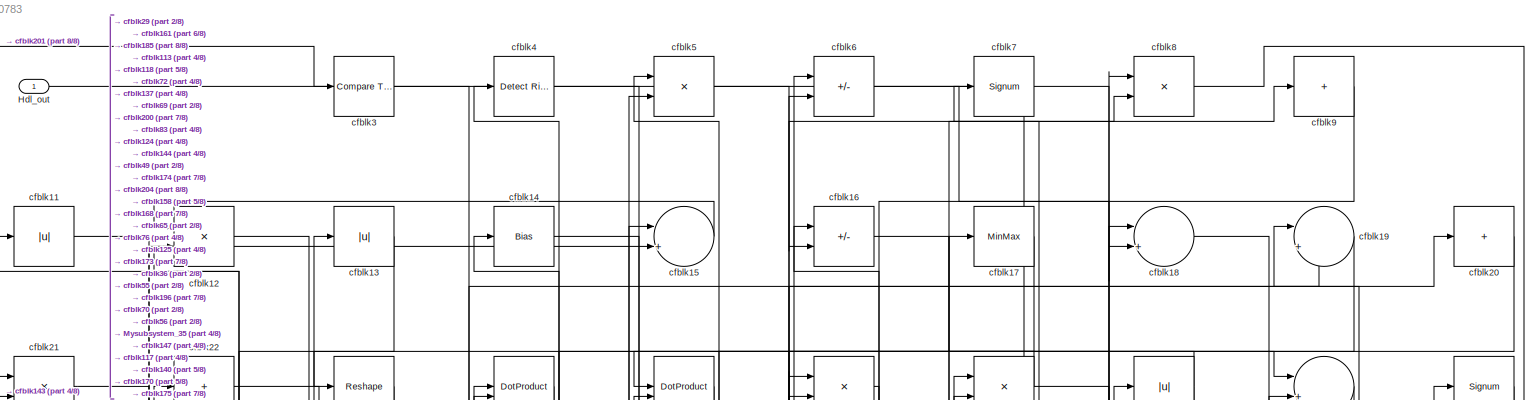
[diagram: root canvas - part 1/8, full width, top band]
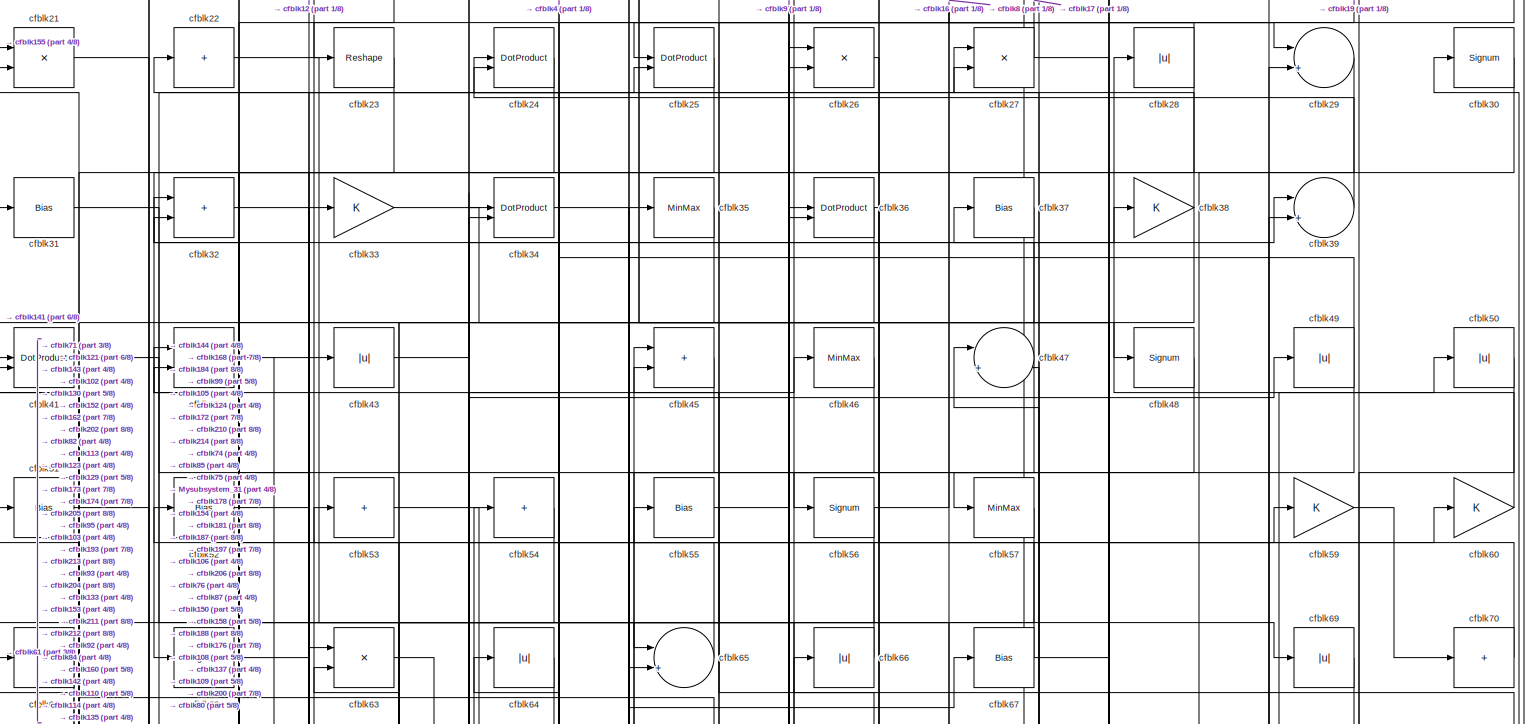
[diagram: root canvas - part 2/8, full width, top band]
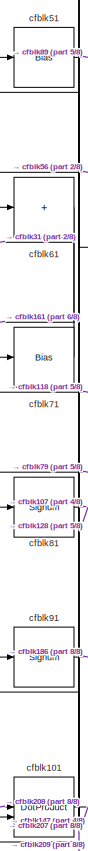
[diagram: root canvas - part 3/8, middle left region]
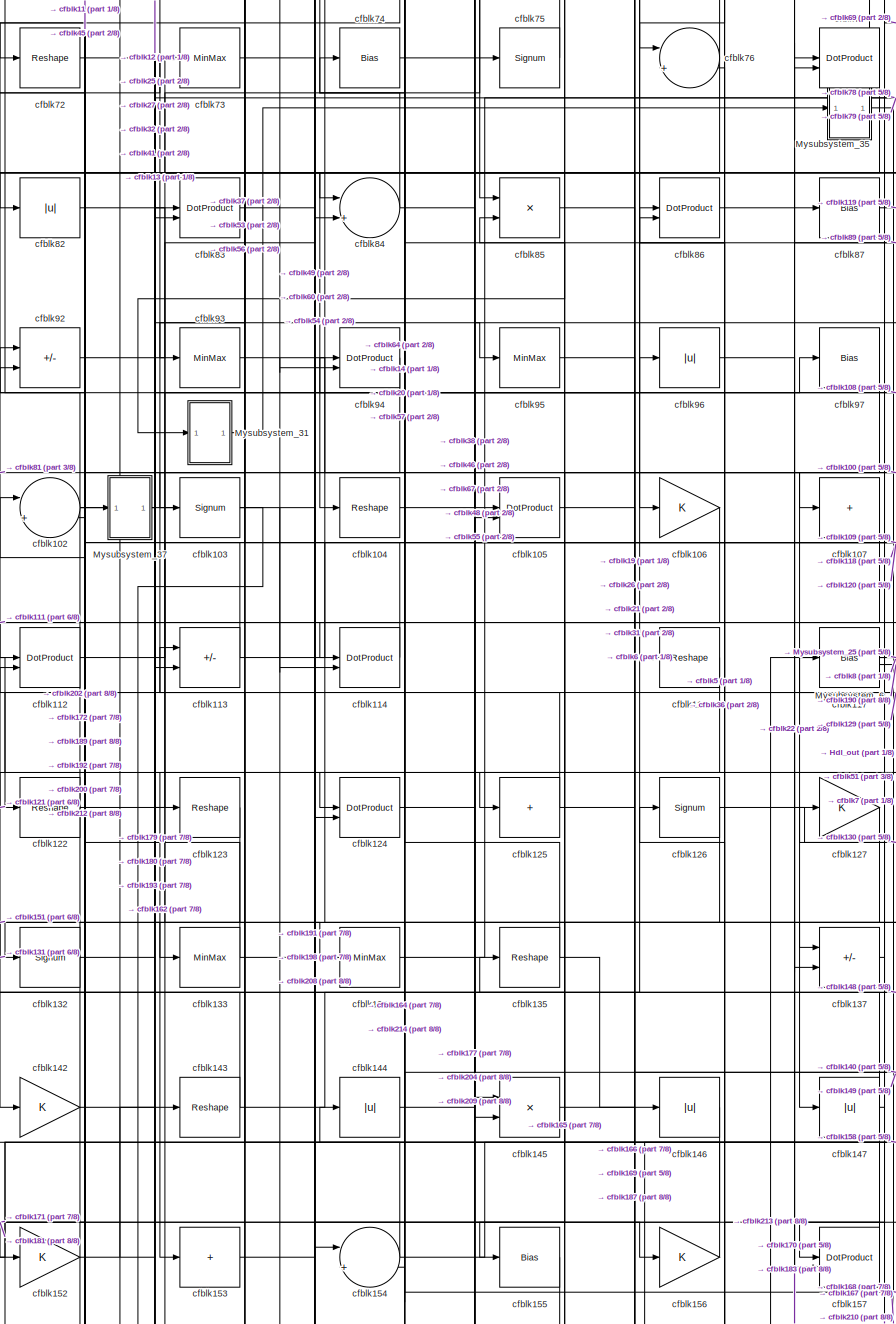
[diagram: root canvas - part 4/8, central region]
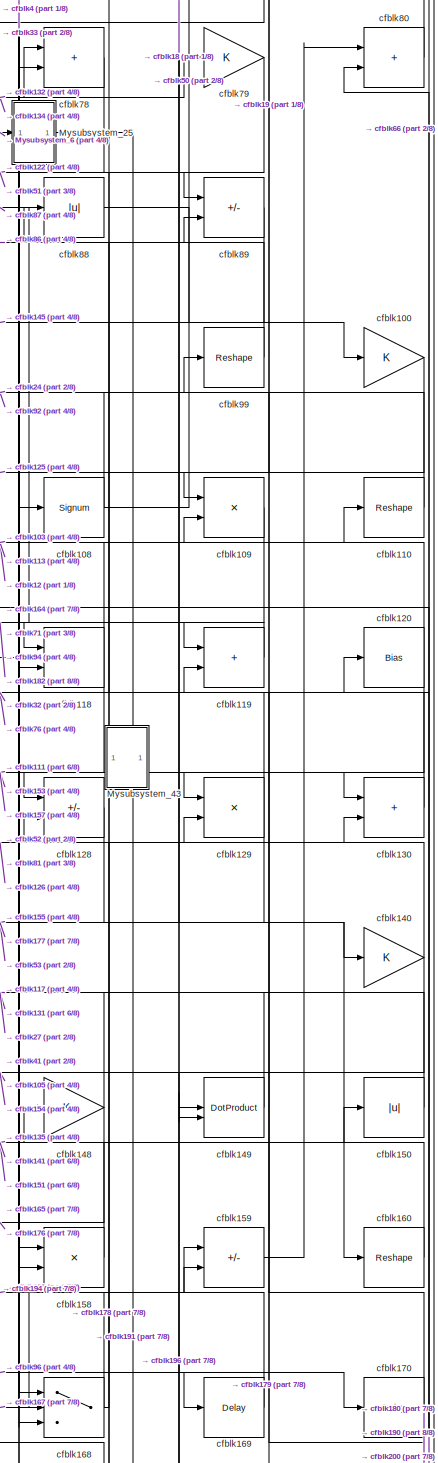
[diagram: root canvas - part 5/8, middle right region]
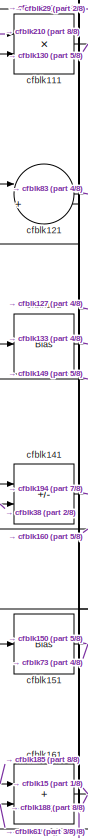
[diagram: root canvas - part 6/8, middle left region]
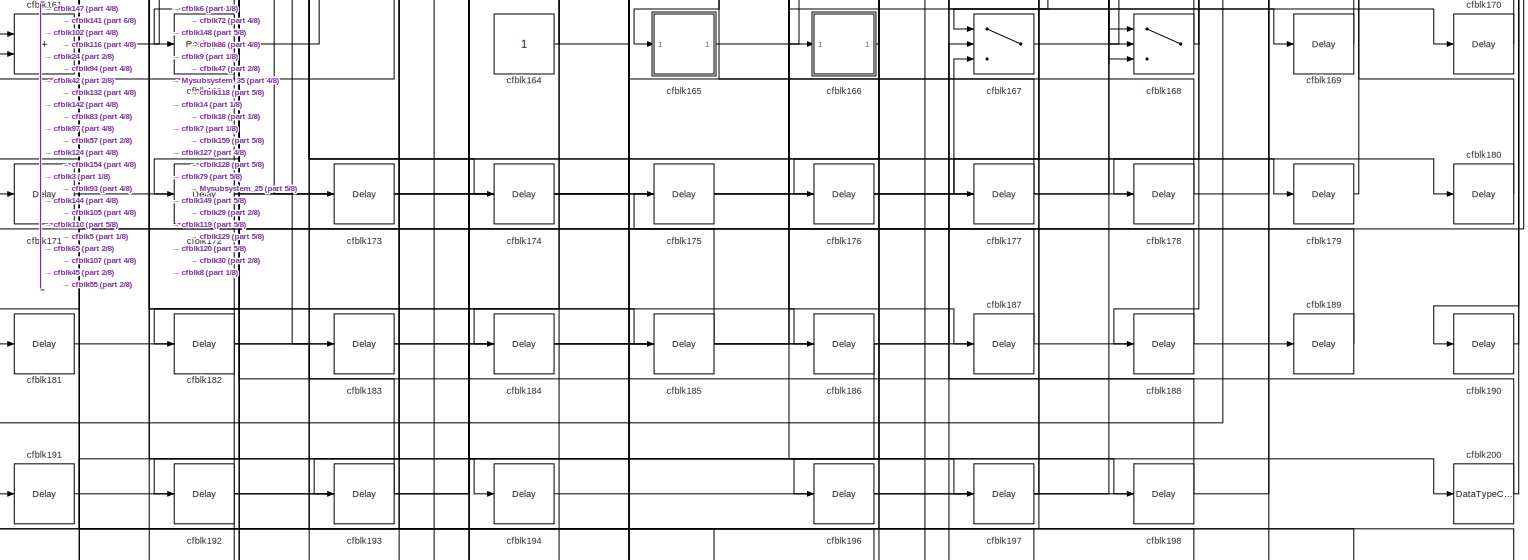
[diagram: root canvas - part 7/8, full width, bottom band]
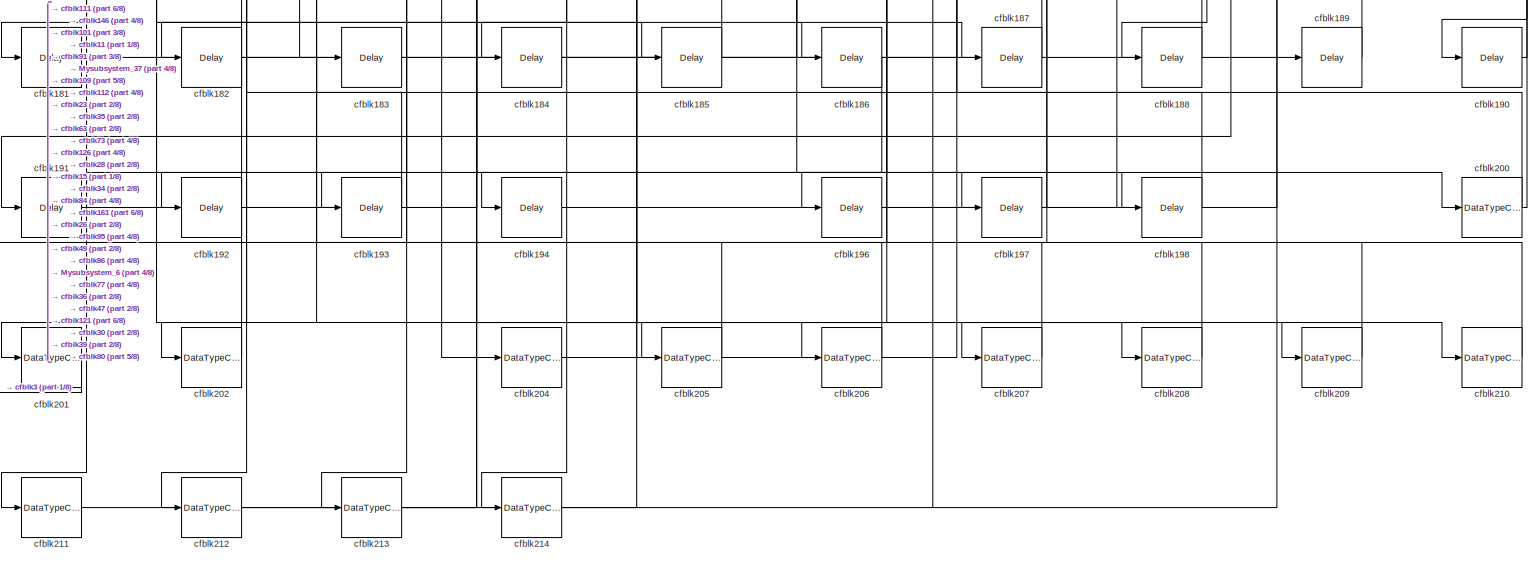
[diagram: root canvas - part 8/8, full width, bottom band]
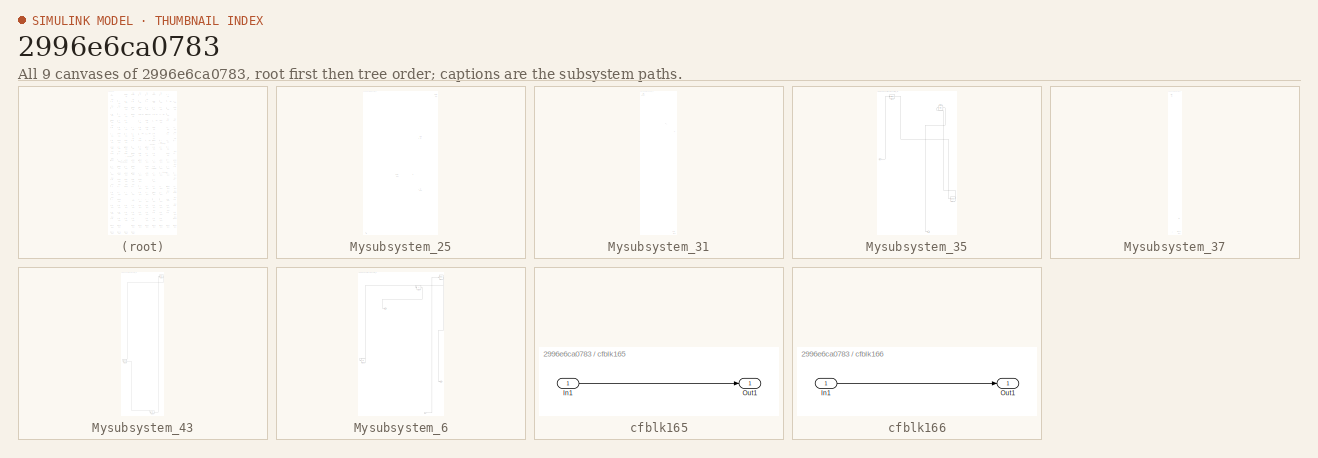
[diagram: thumbnail index - all 9 canvases of the model, root first then tree order]
MODEL slx_2996e6ca0783
KIND model
CONFIG AbsTol = auto
CONFIG EnableMultiTasking = off
CONFIG FixedStep = auto
CONFIG MaxStep = auto
CONFIG MinStep = auto
CONFIG RelTol = 1e-3
CONFIG SampleTimeConstraint = Unconstrained
CONFIG SolverName = VariableStepAuto
CONFIG StartTime = 0.0
CONFIG StopTime = 10.0
BLOCK [Outport] Hdl_out
  OutDataTypeStr = uint8
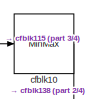
[diagram: Mysubsystem_25 - part 1/4, top right region]
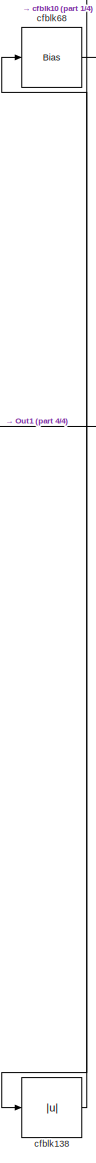
[diagram: Mysubsystem_25 - part 2/4, middle right region]
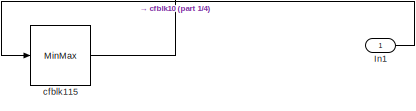
[diagram: Mysubsystem_25 - part 3/4, central region]
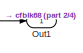
[diagram: Mysubsystem_25 - part 4/4, bottom left region]
BLOCK [SubSystem] Mysubsystem_25
  RTWFcnName = Mysubsystem_25
  RTWFcnNameOpts = User specified
  RTWFileNameOpts = Use function name
  RTWSystemCode = Reusable function
  TreatAsAtomicUnit = on
BLOCK [Inport] Mysubsystem_25/In1
BLOCK [Outport] Mysubsystem_25/Out1
BLOCK [MinMax] Mysubsystem_25/cfblk10
BLOCK [MinMax] Mysubsystem_25/cfblk115
BLOCK [Abs] Mysubsystem_25/cfblk138
  SaturateOnIntegerOverflow = off
BLOCK [Bias] Mysubsystem_25/cfblk68
  Bias = 0.0
  SaturateOnIntegerOverflow = off
BLOCK [SubSystem] Mysubsystem_31
  RTWFcnName = Mysubsystem_31
  RTWFcnNameOpts = User specified
  RTWFileNameOpts = Use function name
  RTWSystemCode = Reusable function
  TreatAsAtomicUnit = on
BLOCK [Inport] Mysubsystem_31/In1
BLOCK [Outport] Mysubsystem_31/Y
BLOCK [Reference] Mysubsystem_31/cfblk1  REF=simulink/Logic and Bit
Operations/Detect
Increase
  LibrarySourceBlock = hdlsllib/Logic and Bit\nOperations/Detect\nIncrease
  SourceBlock = simulink/Logic and Bit\nOperations/Detect\nIncrease
  SourceType = Detect Increase
BLOCK [Delay] Mysubsystem_31/cfblk195
  InputPortMap = u0
  SampleTime = 1
BLOCK [SubSystem] Mysubsystem_35
  RTWFcnName = Mysubsystem_35
  RTWFcnNameOpts = User specified
  RTWFileNameOpts = Use function name
  RTWSystemCode = Reusable function
  TreatAsAtomicUnit = on
BLOCK [Inport] Mysubsystem_35/In1
BLOCK [Outport] Mysubsystem_35/Out1
BLOCK [Signum] Mysubsystem_35/cfblk139
BLOCK [MinMax] Mysubsystem_35/cfblk44
BLOCK [Bias] Mysubsystem_35/cfblk58
  Bias = 0.0
  SaturateOnIntegerOverflow = off
BLOCK [SubSystem] Mysubsystem_37
  RTWFcnName = Mysubsystem_37
  RTWFcnNameOpts = User specified
  RTWFileNameOpts = Use function name
  RTWSystemCode = Reusable function
  TreatAsAtomicUnit = on
BLOCK [Outport] Mysubsystem_37/Out1
BLOCK [Reference] Mysubsystem_37/cfblk2  REF=simulink/Logic and Bit
Operations/Bit Set
  LibrarySourceBlock = hdlsllib/Logic and Bit\nOperations/Bit Set
  SourceBlock = simulink/Logic and Bit\nOperations/Bit Set
  SourceType = Bit Set
BLOCK [DataTypeConversion] Mysubsystem_37/cfblk203
  OutDataTypeStr = uint8
  RndMeth = Floor
  SaturateOnIntegerOverflow = off
BLOCK [Inport] Mysubsystem_37/u
BLOCK [SubSystem] Mysubsystem_43
  RTWFcnName = Mysubsystem_43
  RTWFcnNameOpts = User specified
  RTWFileNameOpts = Use function name
  RTWSystemCode = Reusable function
  TreatAsAtomicUnit = on
BLOCK [Reshape] Mysubsystem_43/cfblk136
BLOCK [Delay] Mysubsystem_43/cfblk199
  InputPortMap = u0
  SampleTime = 1
BLOCK [MinMax] Mysubsystem_43/cfblk40
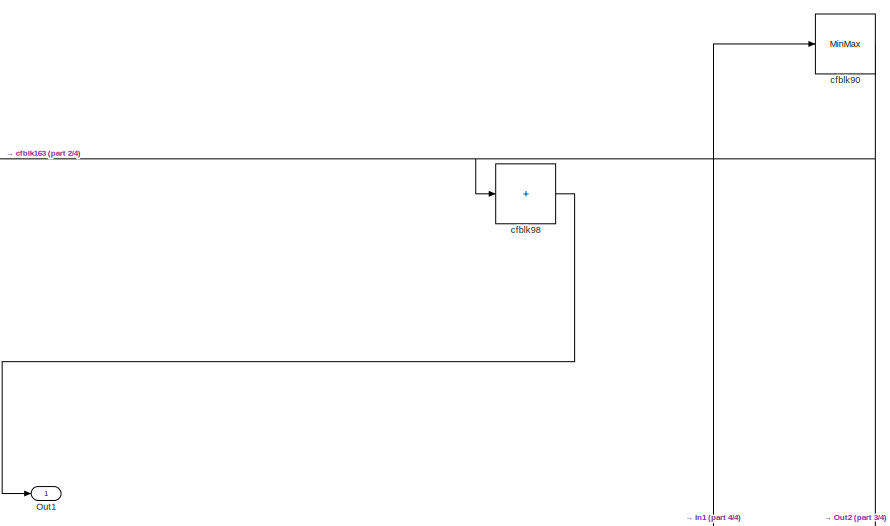
[diagram: Mysubsystem_6 - part 1/4, top center region]
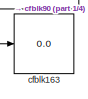
[diagram: Mysubsystem_6 - part 2/4, middle left region]
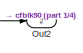
[diagram: Mysubsystem_6 - part 3/4, bottom right region]
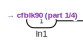
[diagram: Mysubsystem_6 - part 4/4, bottom right region]
BLOCK [SubSystem] Mysubsystem_6
  RTWFcnName = Mysubsystem_6
  RTWFcnNameOpts = User specified
  RTWFileNameOpts = Use function name
  RTWSystemCode = Reusable function
  TreatAsAtomicUnit = on
BLOCK [Inport] Mysubsystem_6/In1
BLOCK [Outport] Mysubsystem_6/Out1
BLOCK [Outport] Mysubsystem_6/Out2
  Port = 2
BLOCK [Display] Mysubsystem_6/cfblk163
  Decimation = 1
BLOCK [MinMax] Mysubsystem_6/cfblk90
BLOCK [Sum] Mysubsystem_6/cfblk98
  IconShape = rectangular
  Inputs = +
BLOCK [Gain] cfblk100
  OutDataTypeStr = uint8
BLOCK [DotProduct] cfblk101
  OutDataTypeStr = uint8
BLOCK [Sum] cfblk102
  Inputs = |++
  OutDataTypeStr = uint8
BLOCK [Signum] cfblk103
BLOCK [Reshape] cfblk104
BLOCK [DotProduct] cfblk105
  OutDataTypeStr = uint8
BLOCK [Gain] cfblk106
  OutDataTypeStr = uint8
BLOCK [Sum] cfblk107
  IconShape = rectangular
  Inputs = +
  OutDataTypeStr = uint8
BLOCK [Signum] cfblk108
BLOCK [Product] cfblk109
  Inputs = */
  OutDataTypeStr = uint8
  RndMeth = Zero
  SaturateOnIntegerOverflow = on
BLOCK [Abs] cfblk11
  OutDataTypeStr = uint8
  SaturateOnIntegerOverflow = off
BLOCK [Reshape] cfblk110
BLOCK [Product] cfblk111
  Inputs = */
  OutDataTypeStr = uint8
  RndMeth = Zero
  SaturateOnIntegerOverflow = on
BLOCK [DotProduct] cfblk112
  OutDataTypeStr = uint8
BLOCK [Sum] cfblk113
  IconShape = rectangular
  Inputs = +-
  OutDataTypeStr = uint8
BLOCK [DotProduct] cfblk114
  OutDataTypeStr = uint8
BLOCK [Reshape] cfblk116
BLOCK [Bias] cfblk117
  Bias = 0.0
  SaturateOnIntegerOverflow = off
BLOCK [Sum] cfblk118
  IconShape = rectangular
  OutDataTypeStr = uint8
BLOCK [Sum] cfblk119
  IconShape = rectangular
  OutDataTypeStr = uint8
BLOCK [Product] cfblk12
  Inputs = */
  OutDataTypeStr = uint8
  RndMeth = Zero
  SaturateOnIntegerOverflow = on
BLOCK [Bias] cfblk120
  Bias = 0.0
  SaturateOnIntegerOverflow = off
BLOCK [Sum] cfblk121
  Inputs = |++
  OutDataTypeStr = uint8
BLOCK [Reshape] cfblk122
BLOCK [Reshape] cfblk123
BLOCK [DotProduct] cfblk124
  OutDataTypeStr = uint8
BLOCK [Sum] cfblk125
  IconShape = rectangular
  Inputs = +
  OutDataTypeStr = uint8
BLOCK [Signum] cfblk126
BLOCK [Gain] cfblk127
  OutDataTypeStr = uint8
BLOCK [Sum] cfblk128
  IconShape = rectangular
  Inputs = +-
  OutDataTypeStr = uint8
BLOCK [Product] cfblk129
  Inputs = */
  OutDataTypeStr = uint8
  RndMeth = Zero
  SaturateOnIntegerOverflow = on
BLOCK [Abs] cfblk13
  OutDataTypeStr = uint8
  SaturateOnIntegerOverflow = off
BLOCK [Sum] cfblk130
  IconShape = rectangular
  OutDataTypeStr = uint8
BLOCK [Bias] cfblk131
  Bias = 0.0
  SaturateOnIntegerOverflow = off
BLOCK [Signum] cfblk132
BLOCK [MinMax] cfblk133
  OutDataTypeStr = uint8
BLOCK [MinMax] cfblk134
  OutDataTypeStr = uint8
BLOCK [Reshape] cfblk135
BLOCK [Sum] cfblk137
  IconShape = rectangular
  Inputs = +-
  OutDataTypeStr = uint8
BLOCK [Bias] cfblk14
  Bias = 0.0
  SaturateOnIntegerOverflow = off
BLOCK [Gain] cfblk140
  OutDataTypeStr = uint8
BLOCK [Sum] cfblk141
  IconShape = rectangular
  Inputs = +-
  OutDataTypeStr = uint8
BLOCK [Gain] cfblk142
  OutDataTypeStr = uint8
BLOCK [Reshape] cfblk143
BLOCK [Abs] cfblk144
  OutDataTypeStr = uint8
  SaturateOnIntegerOverflow = off
BLOCK [Product] cfblk145
  Inputs = */
  OutDataTypeStr = uint8
  RndMeth = Zero
  SaturateOnIntegerOverflow = on
BLOCK [Abs] cfblk146
  OutDataTypeStr = uint8
  SaturateOnIntegerOverflow = off
BLOCK [Abs] cfblk147
  OutDataTypeStr = uint8
  SaturateOnIntegerOverflow = off
BLOCK [Gain] cfblk148
  OutDataTypeStr = uint8
BLOCK [DotProduct] cfblk149
  OutDataTypeStr = uint8
BLOCK [Sum] cfblk15
  Inputs = |++
  OutDataTypeStr = uint8
BLOCK [Abs] cfblk150
  OutDataTypeStr = uint8
  SaturateOnIntegerOverflow = off
BLOCK [Bias] cfblk151
  Bias = 0.0
  SaturateOnIntegerOverflow = off
BLOCK [Gain] cfblk152
  OutDataTypeStr = uint8
BLOCK [Sum] cfblk153
  IconShape = rectangular
  Inputs = +
  OutDataTypeStr = uint8
BLOCK [Sum] cfblk154
  Inputs = |++
  OutDataTypeStr = uint8
BLOCK [Bias] cfblk155
  Bias = 0.0
  SaturateOnIntegerOverflow = off
BLOCK [Gain] cfblk156
  OutDataTypeStr = uint8
BLOCK [DotProduct] cfblk157
  OutDataTypeStr = uint8
BLOCK [Product] cfblk158
  Inputs = */
  OutDataTypeStr = uint8
  RndMeth = Zero
  SaturateOnIntegerOverflow = on
BLOCK [Sum] cfblk159
  IconShape = rectangular
  Inputs = +-
  OutDataTypeStr = uint8
BLOCK [Sum] cfblk16
  IconShape = rectangular
  Inputs = +-
  OutDataTypeStr = uint8
BLOCK [Reshape] cfblk160
BLOCK [Sum] cfblk161
  IconShape = rectangular
  OutDataTypeStr = uint8
BLOCK [Reshape] cfblk162
BLOCK [Constant] cfblk164
  OutDataTypeStr = uint8
  SampleTime = -1
BLOCK [SubSystem] cfblk165
  LibrarySourceBlock = hdlsllib/Ports &\nSubsystems/Subsystem
BLOCK [Inport] cfblk165/In1
BLOCK [Outport] cfblk165/Out1
BLOCK [SubSystem] cfblk166
  LibrarySourceBlock = hdlsllib/Ports &\nSubsystems/Subsystem
BLOCK [Inport] cfblk166/In1
BLOCK [Outport] cfblk166/Out1
BLOCK [Switch] cfblk167
  InputSameDT = off
  OutDataTypeStr = uint8
  SaturateOnIntegerOverflow = off
BLOCK [Switch] cfblk168
  InputSameDT = off
  OutDataTypeStr = uint8
  SaturateOnIntegerOverflow = off
BLOCK [Delay] cfblk169
  InputPortMap = u0
  SampleTime = 1
BLOCK [MinMax] cfblk17
  OutDataTypeStr = uint8
BLOCK [Delay] cfblk170
  InputPortMap = u0
  SampleTime = 1
BLOCK [Delay] cfblk171
  InputPortMap = u0
  SampleTime = 1
BLOCK [Delay] cfblk172
  InputPortMap = u0
  SampleTime = 1
BLOCK [Delay] cfblk173
  InputPortMap = u0
  SampleTime = 1
BLOCK [Delay] cfblk174
  InputPortMap = u0
  SampleTime = 1
BLOCK [Delay] cfblk175
  InputPortMap = u0
  SampleTime = 1
BLOCK [Delay] cfblk176
  InputPortMap = u0
  SampleTime = 1
BLOCK [Delay] cfblk177
  InputPortMap = u0
  SampleTime = 1
BLOCK [Delay] cfblk178
  InputPortMap = u0
  SampleTime = 1
BLOCK [Delay] cfblk179
  InputPortMap = u0
  SampleTime = 1
BLOCK [Sum] cfblk18
  Inputs = |++
  OutDataTypeStr = uint8
BLOCK [Delay] cfblk180
  InputPortMap = u0
  SampleTime = 1
BLOCK [Delay] cfblk181
  InputPortMap = u0
  SampleTime = 1
BLOCK [Delay] cfblk182
  InputPortMap = u0
  SampleTime = 1
BLOCK [Delay] cfblk183
  InputPortMap = u0
  SampleTime = 1
BLOCK [Delay] cfblk184
  InputPortMap = u0
  SampleTime = 1
BLOCK [Delay] cfblk185
  InputPortMap = u0
  SampleTime = 1
BLOCK [Delay] cfblk186
  InputPortMap = u0
  SampleTime = 1
BLOCK [Delay] cfblk187
  InputPortMap = u0
  SampleTime = 1
BLOCK [Delay] cfblk188
  InputPortMap = u0
  SampleTime = 1
BLOCK [Delay] cfblk189
  InputPortMap = u0
  SampleTime = 1
BLOCK [Sum] cfblk19
  Inputs = |++
  OutDataTypeStr = uint8
BLOCK [Delay] cfblk190
  InputPortMap = u0
  SampleTime = 1
BLOCK [Delay] cfblk191
  InputPortMap = u0
  SampleTime = 1
BLOCK [Delay] cfblk192
  InputPortMap = u0
  SampleTime = 1
BLOCK [Delay] cfblk193
  InputPortMap = u0
  SampleTime = 1
BLOCK [Delay] cfblk194
  InputPortMap = u0
  SampleTime = 1
BLOCK [Delay] cfblk196
  InputPortMap = u0
  SampleTime = 1
BLOCK [Delay] cfblk197
  InputPortMap = u0
  SampleTime = 1
BLOCK [Delay] cfblk198
  InputPortMap = u0
  SampleTime = 1
BLOCK [Sum] cfblk20
  IconShape = rectangular
  Inputs = +
  OutDataTypeStr = uint8
BLOCK [DataTypeConversion] cfblk200
  OutDataTypeStr = uint8
  RndMeth = Floor
  SaturateOnIntegerOverflow = off
BLOCK [DataTypeConversion] cfblk201
  OutDataTypeStr = uint8
  RndMeth = Floor
  SaturateOnIntegerOverflow = off
BLOCK [DataTypeConversion] cfblk202
  OutDataTypeStr = uint8
  RndMeth = Floor
  SaturateOnIntegerOverflow = off
BLOCK [DataTypeConversion] cfblk204
  OutDataTypeStr = uint8
  RndMeth = Floor
  SaturateOnIntegerOverflow = off
BLOCK [DataTypeConversion] cfblk205
  OutDataTypeStr = uint8
  RndMeth = Floor
  SaturateOnIntegerOverflow = off
BLOCK [DataTypeConversion] cfblk206
  OutDataTypeStr = uint8
  RndMeth = Floor
  SaturateOnIntegerOverflow = off
BLOCK [DataTypeConversion] cfblk207
  OutDataTypeStr = uint8
  RndMeth = Floor
  SaturateOnIntegerOverflow = off
BLOCK [DataTypeConversion] cfblk208
  OutDataTypeStr = uint8
  RndMeth = Floor
  SaturateOnIntegerOverflow = off
BLOCK [DataTypeConversion] cfblk209
  OutDataTypeStr = uint8
  RndMeth = Floor
  SaturateOnIntegerOverflow = off
BLOCK [Product] cfblk21
  Inputs = */
  OutDataTypeStr = uint8
  RndMeth = Zero
  SaturateOnIntegerOverflow = on
BLOCK [DataTypeConversion] cfblk210
  OutDataTypeStr = uint8
  RndMeth = Floor
  SaturateOnIntegerOverflow = off
BLOCK [DataTypeConversion] cfblk211
  OutDataTypeStr = uint8
  RndMeth = Floor
  SaturateOnIntegerOverflow = off
BLOCK [DataTypeConversion] cfblk212
  OutDataTypeStr = uint8
  RndMeth = Floor
  SaturateOnIntegerOverflow = off
BLOCK [DataTypeConversion] cfblk213
  OutDataTypeStr = uint8
  RndMeth = Floor
  SaturateOnIntegerOverflow = off
BLOCK [DataTypeConversion] cfblk214
  OutDataTypeStr = uint8
  RndMeth = Floor
  SaturateOnIntegerOverflow = off
BLOCK [Sum] cfblk22
  IconShape = rectangular
  Inputs = +
  OutDataTypeStr = uint8
BLOCK [Reshape] cfblk23
BLOCK [DotProduct] cfblk24
  OutDataTypeStr = uint8
BLOCK [DotProduct] cfblk25
  OutDataTypeStr = uint8
BLOCK [Product] cfblk26
  Inputs = */
  OutDataTypeStr = uint8
  RndMeth = Zero
  SaturateOnIntegerOverflow = on
BLOCK [Product] cfblk27
  Inputs = */
  OutDataTypeStr = uint8
  RndMeth = Zero
  SaturateOnIntegerOverflow = on
BLOCK [Abs] cfblk28
  OutDataTypeStr = uint8
  SaturateOnIntegerOverflow = off
BLOCK [Sum] cfblk29
  Inputs = |++
  OutDataTypeStr = uint8
BLOCK [Reference] cfblk3  REF=hdlsllib/Logic and Bit
Operations/Compare
To Zero
  SourceBlock = hdlsllib/Logic and Bit\nOperations/Compare\nTo Zero
  SourceType = Compare To Zero
BLOCK [Signum] cfblk30
BLOCK [Bias] cfblk31
  Bias = 0.0
  SaturateOnIntegerOverflow = off
BLOCK [Sum] cfblk32
  IconShape = rectangular
  OutDataTypeStr = uint8
BLOCK [Gain] cfblk33
  OutDataTypeStr = uint8
BLOCK [DotProduct] cfblk34
  OutDataTypeStr = uint8
BLOCK [MinMax] cfblk35
  OutDataTypeStr = uint8
BLOCK [DotProduct] cfblk36
  OutDataTypeStr = uint8
BLOCK [Bias] cfblk37
  Bias = 0.0
  SaturateOnIntegerOverflow = off
BLOCK [Gain] cfblk38
  OutDataTypeStr = uint8
BLOCK [Sum] cfblk39
  Inputs = |++
  OutDataTypeStr = uint8
BLOCK [Reference] cfblk4  REF=hdlsllib/Logic and Bit
Operations/Detect Rise
Positive
  SourceBlock = hdlsllib/Logic and Bit\nOperations/Detect Rise\nPositive
  SourceType = Detect Rise Positive
BLOCK [DotProduct] cfblk41
  OutDataTypeStr = uint8
BLOCK [Product] cfblk42
  Inputs = */
  OutDataTypeStr = uint8
  RndMeth = Zero
  SaturateOnIntegerOverflow = on
BLOCK [Abs] cfblk43
  OutDataTypeStr = uint8
  SaturateOnIntegerOverflow = off
BLOCK [Sum] cfblk45
  IconShape = rectangular
  OutDataTypeStr = uint8
BLOCK [MinMax] cfblk46
  OutDataTypeStr = uint8
BLOCK [Sum] cfblk47
  Inputs = |++
  OutDataTypeStr = uint8
BLOCK [Signum] cfblk48
BLOCK [Abs] cfblk49
  OutDataTypeStr = uint8
  SaturateOnIntegerOverflow = off
BLOCK [Product] cfblk5
  Inputs = */
  OutDataTypeStr = uint8
  RndMeth = Zero
  SaturateOnIntegerOverflow = on
BLOCK [Abs] cfblk50
  OutDataTypeStr = uint8
  SaturateOnIntegerOverflow = off
BLOCK [Bias] cfblk51
  Bias = 0.0
  SaturateOnIntegerOverflow = off
BLOCK [Bias] cfblk52
  Bias = 0.0
  SaturateOnIntegerOverflow = off
BLOCK [Sum] cfblk53
  IconShape = rectangular
  Inputs = +
  OutDataTypeStr = uint8
BLOCK [Sum] cfblk54
  IconShape = rectangular
  Inputs = +
  OutDataTypeStr = uint8
BLOCK [Bias] cfblk55
  Bias = 0.0
  SaturateOnIntegerOverflow = off
BLOCK [Signum] cfblk56
BLOCK [MinMax] cfblk57
  OutDataTypeStr = uint8
BLOCK [Gain] cfblk59
  OutDataTypeStr = uint8
BLOCK [Sum] cfblk6
  IconShape = rectangular
  Inputs = +-
  OutDataTypeStr = uint8
BLOCK [Gain] cfblk60
  OutDataTypeStr = uint8
BLOCK [Sum] cfblk61
  IconShape = rectangular
  Inputs = +
  OutDataTypeStr = uint8
BLOCK [Signum] cfblk62
BLOCK [Product] cfblk63
  Inputs = */
  OutDataTypeStr = uint8
  RndMeth = Zero
  SaturateOnIntegerOverflow = on
BLOCK [Abs] cfblk64
  OutDataTypeStr = uint8
  SaturateOnIntegerOverflow = off
BLOCK [Sum] cfblk65
  Inputs = |++
  OutDataTypeStr = uint8
BLOCK [Abs] cfblk66
  OutDataTypeStr = uint8
  SaturateOnIntegerOverflow = off
BLOCK [Bias] cfblk67
  Bias = 0.0
  SaturateOnIntegerOverflow = off
BLOCK [Abs] cfblk69
  OutDataTypeStr = uint8
  SaturateOnIntegerOverflow = off
BLOCK [Signum] cfblk7
BLOCK [Sum] cfblk70
  IconShape = rectangular
  Inputs = +
  OutDataTypeStr = uint8
BLOCK [Bias] cfblk71
  Bias = 0.0
  SaturateOnIntegerOverflow = off
BLOCK [Reshape] cfblk72
BLOCK [MinMax] cfblk73
  OutDataTypeStr = uint8
BLOCK [Bias] cfblk74
  Bias = 0.0
  SaturateOnIntegerOverflow = off
BLOCK [Signum] cfblk75
BLOCK [Sum] cfblk76
  Inputs = |++
  OutDataTypeStr = uint8
BLOCK [DotProduct] cfblk77
  OutDataTypeStr = uint8
BLOCK [Sum] cfblk78
  IconShape = rectangular
  OutDataTypeStr = uint8
BLOCK [Gain] cfblk79
  OutDataTypeStr = uint8
BLOCK [Product] cfblk8
  Inputs = */
  OutDataTypeStr = uint8
  RndMeth = Zero
  SaturateOnIntegerOverflow = on
BLOCK [Sum] cfblk80
  IconShape = rectangular
  OutDataTypeStr = uint8
BLOCK [Signum] cfblk81
BLOCK [Abs] cfblk82
  OutDataTypeStr = uint8
  SaturateOnIntegerOverflow = off
BLOCK [DotProduct] cfblk83
  OutDataTypeStr = uint8
BLOCK [Sum] cfblk84
  Inputs = |++
  OutDataTypeStr = uint8
BLOCK [Product] cfblk85
  Inputs = */
  OutDataTypeStr = uint8
  RndMeth = Zero
  SaturateOnIntegerOverflow = on
BLOCK [DotProduct] cfblk86
  OutDataTypeStr = uint8
BLOCK [Bias] cfblk87
  Bias = 0.0
  SaturateOnIntegerOverflow = off
BLOCK [Abs] cfblk88
  OutDataTypeStr = uint8
  SaturateOnIntegerOverflow = off
BLOCK [Sum] cfblk89
  IconShape = rectangular
  Inputs = +-
  OutDataTypeStr = uint8
BLOCK [Sum] cfblk9
  IconShape = rectangular
  Inputs = +
  OutDataTypeStr = uint8
BLOCK [Signum] cfblk91
BLOCK [Sum] cfblk92
  IconShape = rectangular
  Inputs = +-
  OutDataTypeStr = uint8
BLOCK [MinMax] cfblk93
  OutDataTypeStr = uint8
BLOCK [DotProduct] cfblk94
  OutDataTypeStr = uint8
BLOCK [MinMax] cfblk95
  OutDataTypeStr = uint8
BLOCK [Abs] cfblk96
  OutDataTypeStr = uint8
  SaturateOnIntegerOverflow = off
BLOCK [Bias] cfblk97
  Bias = 0.0
  SaturateOnIntegerOverflow = off
BLOCK [Reshape] cfblk99
LINE Mysubsystem_25/In1:1 -> Mysubsystem_25/cfblk115:1
LINE Mysubsystem_25/cfblk10:1 -> Mysubsystem_25/cfblk138:1
LINE Mysubsystem_25/cfblk115:1 -> Mysubsystem_25/cfblk10:1
LINE Mysubsystem_25/cfblk138:1 -> Mysubsystem_25/cfblk68:1
LINE Mysubsystem_25/cfblk68:1 -> Mysubsystem_25/Out1:1
LINE Mysubsystem_25:1 -> cfblk191:1
LINE Mysubsystem_31/In1:1 -> Mysubsystem_31/cfblk195:1
LINE Mysubsystem_31/cfblk195:1 -> Mysubsystem_31/cfblk1:1
LINE Mysubsystem_31/cfblk1:1 -> Mysubsystem_31/Y:1
LINE Mysubsystem_31:1 -> Mysubsystem_35:1
LINE Mysubsystem_35/In1:1 -> Mysubsystem_35/cfblk44:1
LINE Mysubsystem_35/cfblk139:1 -> Mysubsystem_35/cfblk58:1
LINE Mysubsystem_35/cfblk44:1 -> Mysubsystem_35/cfblk139:1
LINE Mysubsystem_35/cfblk58:1 -> Mysubsystem_35/Out1:1
NET Mysubsystem_35:1 -> Hdl_out:1, cfblk167:1
LINE Mysubsystem_37/cfblk203:1 -> Mysubsystem_37/Out1:1
LINE Mysubsystem_37/cfblk2:1 -> Mysubsystem_37/cfblk203:1
LINE Mysubsystem_37/u:1 -> Mysubsystem_37/cfblk2:1
LINE Mysubsystem_37:1 -> cfblk183:1
LINE Mysubsystem_43/cfblk136:1 -> Mysubsystem_43/cfblk199:1
LINE Mysubsystem_43/cfblk199:1 -> Mysubsystem_43/cfblk40:1
LINE Mysubsystem_43/cfblk40:1 -> Mysubsystem_43/cfblk136:1
LINE Mysubsystem_6/In1:1 -> Mysubsystem_6/cfblk90:1
NET Mysubsystem_6/cfblk90:1 -> Mysubsystem_6/Out2:1, Mysubsystem_6/cfblk163:1, Mysubsystem_6/cfblk98:1
LINE Mysubsystem_6/cfblk98:1 -> Mysubsystem_6/Out1:1
LINE Mysubsystem_6:1 -> Mysubsystem_25:1
LINE Mysubsystem_6:2 -> cfblk190:1
LINE cfblk100:1 -> cfblk125:1
LINE cfblk101:1 -> cfblk207:1
NET cfblk102:1 -> cfblk25:2, cfblk27:1
NET cfblk103:1 -> cfblk109:2, cfblk114:2, cfblk156:1
LINE cfblk104:1 -> cfblk145:1
LINE cfblk105:1 -> cfblk149:2
LINE cfblk106:1 -> cfblk111:2
LINE cfblk107:1 -> cfblk165:1
NET cfblk108:1 -> cfblk50:1, cfblk92:1
LINE cfblk109:1 -> cfblk182:1
LINE cfblk110:1 -> cfblk24:2
NET cfblk111:1 -> cfblk130:1, cfblk201:1
NET cfblk112:1 -> cfblk212:1, cfblk84:2
NET cfblk113:1 -> cfblk11:1, cfblk78:2
LINE cfblk114:1 -> cfblk53:1
LINE cfblk116:1 -> cfblk172:1
LINE cfblk117:1 -> cfblk8:1
NET cfblk118:1 -> cfblk12:2, cfblk153:1, cfblk71:1
LINE cfblk119:1 -> cfblk118:1
LINE cfblk11:1 -> cfblk185:1
NET cfblk120:1 -> cfblk157:2, cfblk94:1
LINE cfblk121:1 -> cfblk83:2
LINE cfblk122:1 -> cfblk75:1
LINE cfblk123:1 -> cfblk132:1
LINE cfblk124:1 -> cfblk38:1
NET cfblk125:1 -> cfblk13:1, cfblk19:2
NET cfblk126:1 -> cfblk130:2, cfblk214:1
LINE cfblk127:1 -> cfblk151:1
LINE cfblk128:1 -> cfblk177:1
NET cfblk129:1 -> cfblk155:1, cfblk76:2, cfblk88:1
NET cfblk12:1 -> cfblk137:2, cfblk69:1
LINE cfblk130:1 -> cfblk32:1
LINE cfblk131:1 -> cfblk133:1
NET cfblk132:1 -> cfblk179:1, cfblk79:1
NET cfblk133:1 -> cfblk49:1, cfblk92:2
LINE cfblk134:1 -> cfblk78:1
NET cfblk135:1 -> cfblk146:1, cfblk64:1
LINE cfblk137:1 -> cfblk157:1
LINE cfblk13:1 -> cfblk72:1
NET cfblk140:1 -> cfblk154:2, cfblk99:1
LINE cfblk141:1 -> cfblk194:1
LINE cfblk142:1 -> cfblk180:1
NET cfblk143:1 -> cfblk21:2, cfblk6:1
NET cfblk144:1 -> cfblk14:1, cfblk67:1
LINE cfblk145:1 -> cfblk169:1
LINE cfblk146:1 -> cfblk181:1
NET cfblk147:1 -> cfblk171:1, cfblk51:1, cfblk7:1, cfblk85:2
NET cfblk148:1 -> cfblk117:1, cfblk176:1
LINE cfblk149:1 -> cfblk131:1
LINE cfblk14:1 -> cfblk168:1
NET cfblk150:1 -> cfblk27:2, cfblk41:2
NET cfblk151:1 -> cfblk150:1, cfblk73:1
NET cfblk152:1 -> cfblk143:1, cfblk96:1
LINE cfblk153:1 -> cfblk46:1
NET cfblk154:1 -> cfblk113:1, cfblk26:2
LINE cfblk155:1 -> cfblk21:1
LINE cfblk156:1 -> cfblk74:1
LINE cfblk157:1 -> cfblk126:1
LINE cfblk158:1 -> cfblk135:1
LINE cfblk159:1 -> cfblk80:1
LINE cfblk15:1 -> cfblk12:1
LINE cfblk160:1 -> cfblk141:1
NET cfblk161:1 -> cfblk15:2, cfblk17:1
LINE cfblk162:1 -> cfblk97:1
NET cfblk164:1 -> cfblk110:1, cfblk144:1
LINE cfblk165/In1:1 -> cfblk165/Out1:1
LINE cfblk165:1 -> cfblk148:1
LINE cfblk166/In1:1 -> cfblk166/Out1:1
LINE cfblk166:1 -> cfblk86:1
LINE cfblk167:1 -> cfblk159:1
NET cfblk168:1 -> cfblk127:1, cfblk128:2, cfblk42:1
LINE cfblk169:1 -> cfblk159:2
LINE cfblk16:1 -> cfblk29:1
LINE cfblk170:1 -> cfblk19:1
LINE cfblk171:1 -> cfblk167:3
LINE cfblk172:1 -> cfblk65:2
LINE cfblk173:1 -> cfblk6:2
LINE cfblk174:1 -> cfblk5:2
LINE cfblk175:1 -> cfblk18:1
LINE cfblk176:1 -> cfblk29:2
LINE cfblk177:1 -> cfblk105:1
LINE cfblk178:1 -> cfblk45:2
LINE cfblk179:1 -> cfblk119:2
LINE cfblk17:1 -> cfblk36:2
LINE cfblk180:1 -> cfblk129:2
LINE cfblk181:1 -> cfblk26:1
LINE cfblk182:1 -> cfblk205:1
LINE cfblk183:1 -> cfblk77:2
LINE cfblk184:1 -> cfblk39:2
LINE cfblk185:1 -> cfblk161:1
LINE cfblk186:1 -> cfblk211:1
LINE cfblk187:1 -> cfblk36:1
LINE cfblk188:1 -> cfblk121:1
LINE cfblk189:1 -> cfblk112:2
LINE cfblk18:1 -> cfblk140:1
LINE cfblk190:1 -> cfblk80:2
LINE cfblk191:1 -> cfblk154:1
LINE cfblk192:1 -> cfblk124:2
LINE cfblk193:1 -> cfblk83:1
LINE cfblk194:1 -> cfblk118:2
LINE cfblk196:1 -> cfblk149:1
LINE cfblk197:1 -> cfblk47:2
LINE cfblk198:1 -> cfblk167:2
LINE cfblk19:1 -> cfblk65:1
NET cfblk200:1 -> cfblk102:1, cfblk120:1, cfblk30:1
LINE cfblk201:1 -> cfblk3:1
LINE cfblk202:1 -> Mysubsystem_37:1
NET cfblk204:1 -> cfblk15:1, cfblk77:1
LINE cfblk205:1 -> cfblk63:1
LINE cfblk206:1 -> cfblk63:2
LINE cfblk207:1 -> cfblk91:1
LINE cfblk208:1 -> cfblk101:1
LINE cfblk209:1 -> cfblk101:2
LINE cfblk20:1 -> cfblk124:1
NET cfblk210:1 -> cfblk111:1, cfblk47:1, cfblk86:2
LINE cfblk211:1 -> cfblk34:1
LINE cfblk212:1 -> cfblk34:2
NET cfblk213:1 -> Mysubsystem_6:1, cfblk189:1
LINE cfblk214:1 -> cfblk35:1
LINE cfblk21:1 -> cfblk84:1
LINE cfblk22:1 -> cfblk87:1
LINE cfblk23:1 -> cfblk202:1
LINE cfblk24:1 -> cfblk162:1
NET cfblk25:1 -> cfblk113:2, cfblk62:1
LINE cfblk26:1 -> cfblk56:1
NET cfblk27:1 -> cfblk158:2, cfblk25:1
NET cfblk28:1 -> cfblk184:1, cfblk23:1
LINE cfblk29:1 -> cfblk121:2
LINE cfblk30:1 -> cfblk188:1
LINE cfblk31:1 -> cfblk106:1
NET cfblk32:1 -> cfblk43:1, cfblk95:1
LINE cfblk33:1 -> cfblk108:1
LINE cfblk34:1 -> cfblk210:1
LINE cfblk35:1 -> cfblk213:1
NET cfblk36:1 -> cfblk102:2, cfblk76:1
LINE cfblk37:1 -> cfblk103:1
NET cfblk38:1 -> cfblk141:2, cfblk22:1, cfblk48:1
LINE cfblk39:1 -> cfblk24:1
LINE cfblk3:1 -> cfblk200:1
LINE cfblk41:1 -> cfblk123:1
NET cfblk42:1 -> cfblk173:1, cfblk174:1
LINE cfblk43:1 -> cfblk39:1
LINE cfblk45:1 -> cfblk152:1
LINE cfblk46:1 -> cfblk105:2
NET cfblk47:1 -> cfblk37:1, cfblk57:1
LINE cfblk48:1 -> cfblk85:1
NET cfblk49:1 -> cfblk206:1, cfblk4:1
LINE cfblk4:1 -> cfblk158:1
LINE cfblk50:1 -> cfblk109:1
LINE cfblk51:1 -> cfblk89:1
LINE cfblk52:1 -> cfblk129:1
LINE cfblk53:1 -> cfblk160:1
LINE cfblk54:1 -> cfblk82:1
NET cfblk55:1 -> Mysubsystem_31:1, cfblk197:1, cfblk9:1
NET cfblk56:1 -> cfblk61:1, cfblk8:2, cfblk93:1
NET cfblk57:1 -> cfblk114:1, cfblk193:1
LINE cfblk59:1 -> cfblk70:1
LINE cfblk5:1 -> cfblk16:2
LINE cfblk60:1 -> cfblk28:1
LINE cfblk61:1 -> cfblk161:2
LINE cfblk62:1 -> cfblk33:1
LINE cfblk63:1 -> cfblk204:1
LINE cfblk64:1 -> cfblk142:1
LINE cfblk65:1 -> cfblk45:1
LINE cfblk66:1 -> cfblk52:1
NET cfblk67:1 -> cfblk42:2, cfblk59:1
LINE cfblk69:1 -> cfblk137:1
LINE cfblk6:1 -> cfblk18:2
LINE cfblk70:1 -> cfblk16:1
LINE cfblk71:1 -> cfblk31:1
LINE cfblk72:1 -> cfblk166:1
LINE cfblk73:1 -> cfblk208:1
LINE cfblk74:1 -> cfblk55:1
LINE cfblk75:1 -> cfblk41:1
NET cfblk76:1 -> cfblk104:1, cfblk5:1
LINE cfblk77:1 -> cfblk112:1
LINE cfblk78:1 -> cfblk122:1
NET cfblk79:1 -> cfblk178:1, cfblk81:1
LINE cfblk7:1 -> cfblk168:2
LINE cfblk80:1 -> cfblk66:1
NET cfblk81:1 -> cfblk107:1, cfblk128:1
LINE cfblk82:1 -> cfblk134:1
LINE cfblk83:1 -> cfblk20:1
NET cfblk84:1 -> cfblk209:1, cfblk54:1
LINE cfblk85:1 -> cfblk116:1
LINE cfblk86:1 -> cfblk89:2
LINE cfblk87:1 -> cfblk119:1
LINE cfblk88:1 -> cfblk100:1
LINE cfblk89:1 -> cfblk145:2
LINE cfblk8:1 -> cfblk175:1
LINE cfblk91:1 -> cfblk186:1
LINE cfblk92:1 -> cfblk60:1
NET cfblk93:1 -> cfblk168:3, cfblk198:1, cfblk94:2
LINE cfblk94:1 -> cfblk192:1
LINE cfblk95:1 -> cfblk187:1
LINE cfblk96:1 -> cfblk170:1
LINE cfblk97:1 -> cfblk147:1
LINE cfblk99:1 -> cfblk32:2
LINE cfblk9:1 -> cfblk196:1
note: NET lines group one-source signal fan-out (src -> all destinations, sorted); 1:1 wires keep LINE
